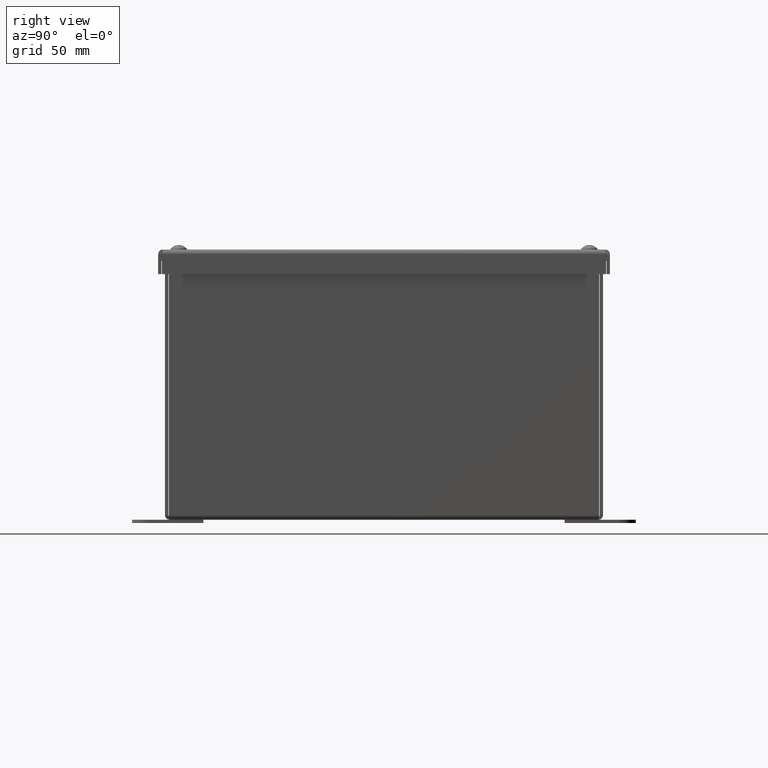
[diagram: clean part render]
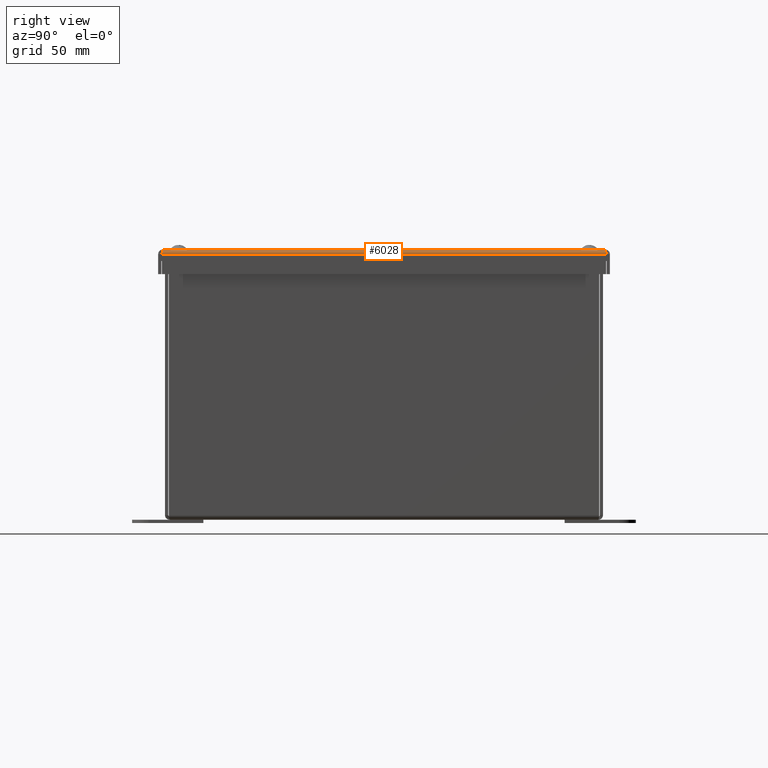
[diagram: same view with one face highlighted and labeled with its STEP entity id]
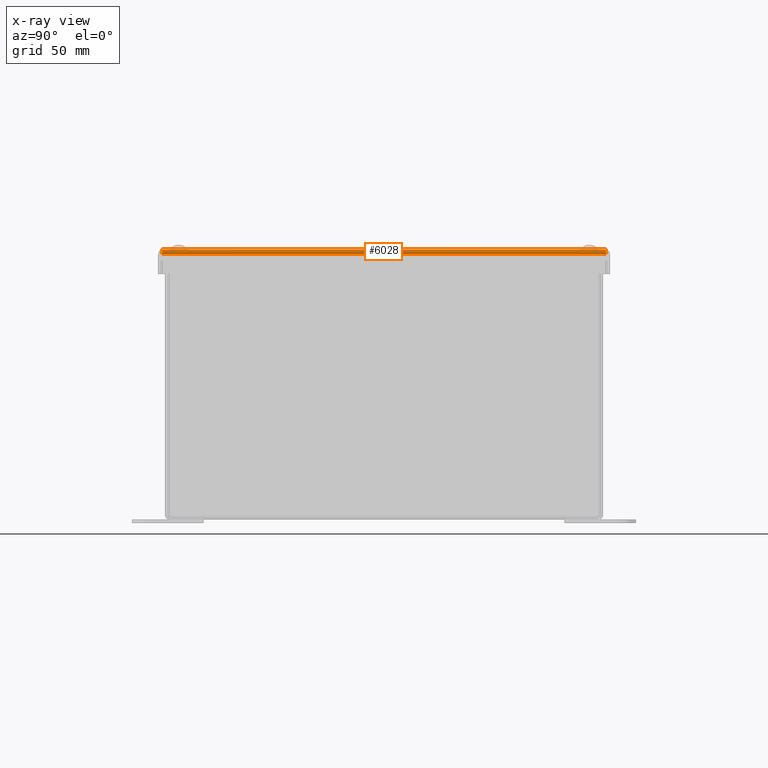
[diagram: x-ray of the same camera — body ghosted, the highlighted face saturated]
A machine part, right view. The second image highlights one B-rep face of the part: STEP entity #6028.
The next image is the same camera in x-ray: the body ghosted, the highlighted face saturated — about 0% of this face is hidden behind the body in this view.
In plain terms, the highlighted cylindrical surface (edge-blend (fillet) strip) has radius 2.6734 mm, axis along (-0, 1, 0).
Its self-contained STEP definition (entity closure, byte-faithful):
#5727=CARTESIAN_POINT('',(5.051000000000002,-5.050999999999998,0.074));
#5728=VERTEX_POINT('',#5727);
#5983=CARTESIAN_POINT('',(5.051,0.0,-0.03125));
#5984=DIRECTION('',(-4.068963E-016,1.0,0.0));
#5985=DIRECTION('',(0.0,0.0,1.0));
#5986=AXIS2_PLACEMENT_3D('',#5983,#5984,#5985);
#5987=CYLINDRICAL_SURFACE('',#5986,0.10525);
#5988=CARTESIAN_POINT('',(5.156249999999997,5.071201456543959,-0.031249999999997));
#5989=VERTEX_POINT('',#5988);
#5990=CARTESIAN_POINT('',(5.156250000000002,-5.071201456543959,-0.03125));
#5991=VERTEX_POINT('',#5990);
#5992=CARTESIAN_POINT('',(5.156249999999998,5.071201456543959,-0.03125));
#5993=DIRECTION('',(0.0,-1.0,0.0));
#5994=VECTOR('',#5993,10.142402913087917);
#5995=LINE('',#5992,#5994);
#5996=EDGE_CURVE('',#5989,#5991,#5995,.T.);
#5997=ORIENTED_EDGE('',*,*,#5996,.F.);
#5998=CARTESIAN_POINT('',(5.050999999999998,5.051000000000001,0.074));
#5999=VERTEX_POINT('',#5998);
#6000=CARTESIAN_POINT('',(5.05099999999999,5.050999999999998,0.074));
#6001=CARTESIAN_POINT('',(5.074618044770728,5.053885922363421,0.074000000000002));
#6002=CARTESIAN_POINT('',(5.098265528240666,5.056771844726844,0.065742508025773));
#6003=CARTESIAN_POINT('',(5.116637364594809,5.059657767090267,0.051015244626371));
#6004=CARTESIAN_POINT('',(5.141133146400331,5.06350566357483,0.031378893427169));
#6005=CARTESIAN_POINT('',(5.156249999999996,5.067353560059395,0.00024072636099));
#6006=CARTESIAN_POINT('',(5.156249999999998,5.071201456543959,-0.031249999999992));
#6007=B_SPLINE_CURVE_WITH_KNOTS('',3,(#6000,#6001,#6002,#6003,#6004,#6005,#6006),.UNSPECIFIED.,.F.,.U.,(4,3,4),(0.0,0.673198425769246,1.570796326794895),.UNSPECIFIED.);
#6008=EDGE_CURVE('',#5999,#5989,#6007,.T.);
#6009=ORIENTED_EDGE('',*,*,#6008,.F.);
#6010=CARTESIAN_POINT('',(5.051000000000002,-5.050999999999998,0.074));
#6011=DIRECTION('',(0.0,1.0,0.0));
#6012=VECTOR('',#6011,10.102);
#6013=LINE('',#6010,#6012);
#6014=EDGE_CURVE('',#5728,#5999,#6013,.T.);
#6015=ORIENTED_EDGE('',*,*,#6014,.F.);
#6016=CARTESIAN_POINT('',(5.156250000000003,-5.071201456543959,-0.03125));
#6017=CARTESIAN_POINT('',(5.156250000000003,-5.067353560059395,0.000240726360984));
#6018=CARTESIAN_POINT('',(5.141133146400342,-5.063505663574831,0.031378893427163));
#6019=CARTESIAN_POINT('',(5.11663736459482,-5.059657767090267,0.051015244626367));
#6020=CARTESIAN_POINT('',(5.098265528240679,-5.056771844726844,0.06574250802577));
#6021=CARTESIAN_POINT('',(5.074618044770741,-5.053885922363421,0.074));
#6022=CARTESIAN_POINT('',(5.051000000000004,-5.050999999999998,0.074));
#6023=B_SPLINE_CURVE_WITH_KNOTS('',3,(#6016,#6017,#6018,#6019,#6020,#6021,#6022),.UNSPECIFIED.,.F.,.U.,(4,3,4),(0.0,0.897597901025654,1.570796326794895),.UNSPECIFIED.);
#6024=EDGE_CURVE('',#5991,#5728,#6023,.T.);
#6025=ORIENTED_EDGE('',*,*,#6024,.F.);
#6026=EDGE_LOOP('',(#5997,#6009,#6015,#6025));
#6027=FACE_OUTER_BOUND('',#6026,.T.);
#6028=ADVANCED_FACE('',(#6027),#5987,.T.);